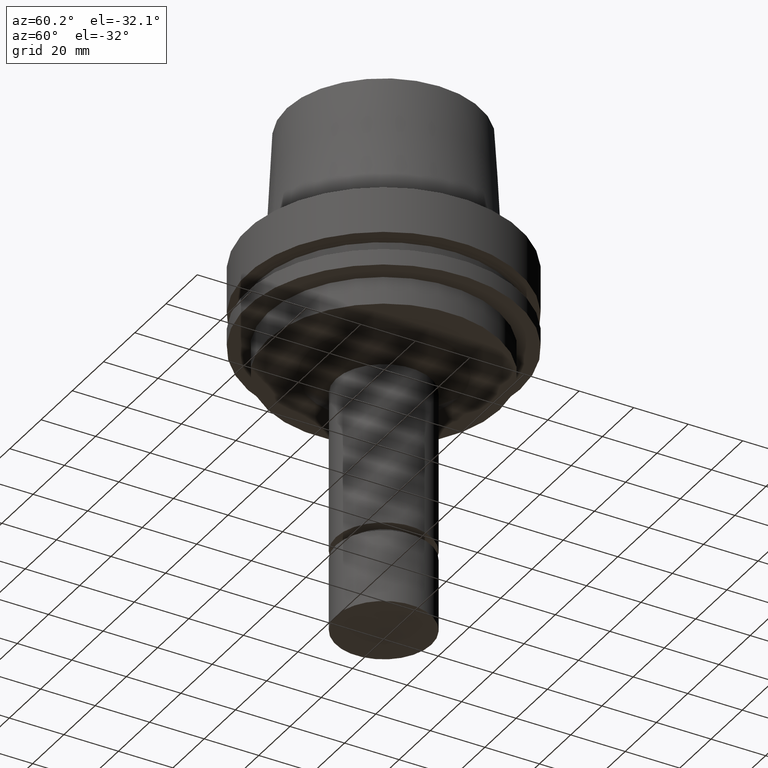
[diagram: clean part render]
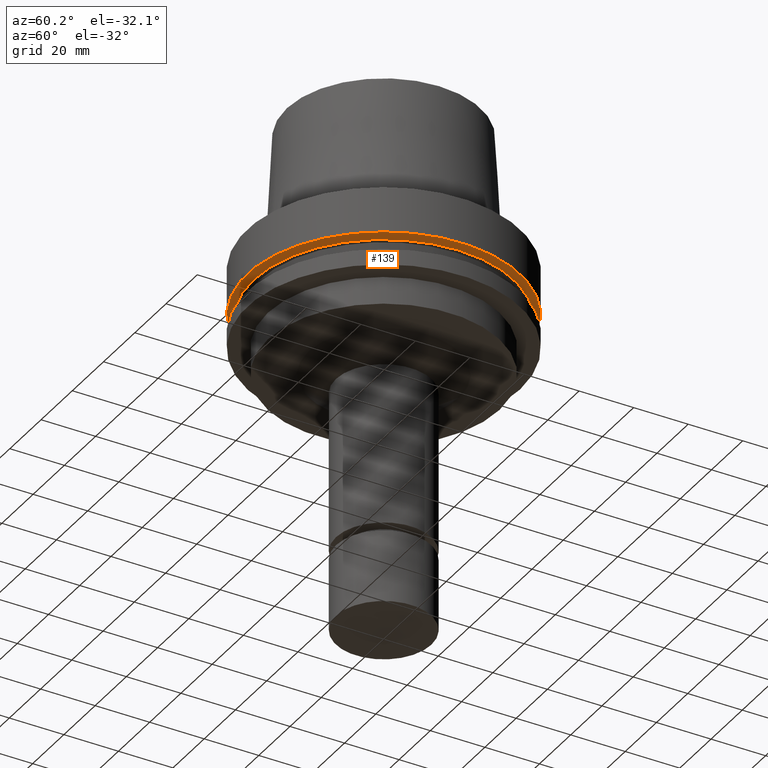
[diagram: same view with one face highlighted and labeled with its STEP entity id]
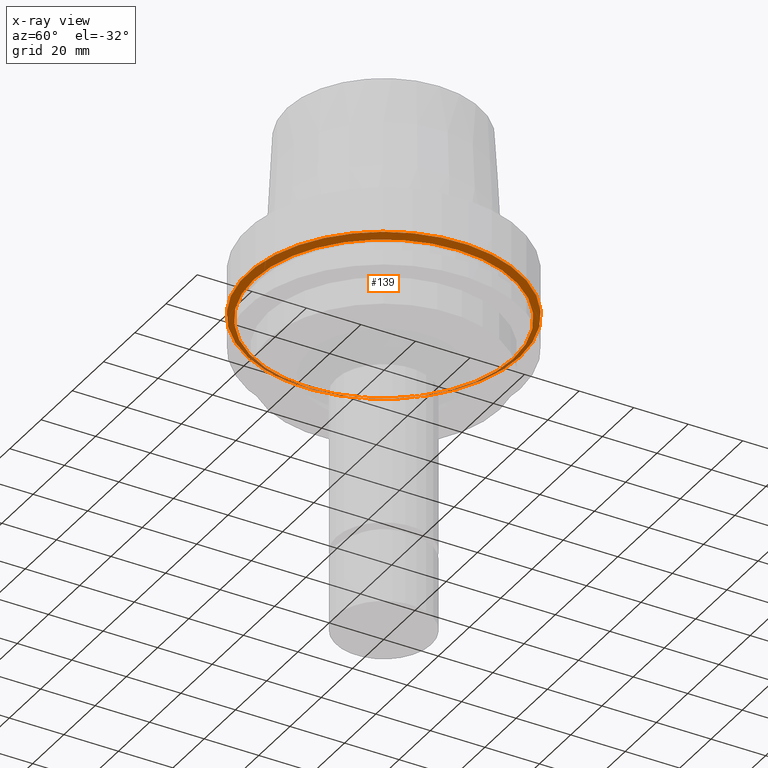
[diagram: x-ray of the same camera — body ghosted, the highlighted face saturated]
A machine part, auxiliary view. The second image highlights one B-rep face of the part: STEP entity #139.
The next image is the same camera in x-ray: the body ghosted, the highlighted face saturated — about 8% of this face is hidden behind the body in this view.
In plain terms, the highlighted conical surface has half-angle 60 deg.
Its self-contained STEP definition (entity closure, byte-faithful):
#106=EDGE_CURVE('Unnamed[1]',#260,#260,#261,.T.);
#139=ADVANCED_FACE('Unnamed[1]',(#312,#313),#314,.T.);
#199=EDGE_CURVE('Unnamed[1]',#404,#404,#405,.T.);
#260=VERTEX_POINT('',#470);
#261=CIRCLE('',#471,50.0);
#312=FACE_BOUND('',#535,.T.);
#313=FACE_BOUND('',#536,.T.);
#314=CONICAL_SURFACE('',#537,48.81129763,1.04719755328238);
#404=VERTEX_POINT('',#648);
#405=CIRCLE('',#649,47.62259526);
#470=CARTESIAN_POINT('',(1.0257889421431E-015,50.0,-16.75240474));
#471=AXIS2_PLACEMENT_3D('',#698,#699,#700);
#535=EDGE_LOOP('',(#756));
#536=EDGE_LOOP('',(#757));
#537=AXIS2_PLACEMENT_3D('',#758,#759,#760);
#648=CARTESIAN_POINT('',(1.10983616172729E-015,47.62259526,-18.125));
#649=AXIS2_PLACEMENT_3D('',#857,#858,#859);
#698=CARTESIAN_POINT('',(1.0257889421431E-015,2.05157788428619E-015,-16.75240474));
#699=DIRECTION('',(6.12323399573677E-017,1.22464679914672E-016,-1.0));
#700=DIRECTION('',(-1.23259516440783E-032,1.0,1.22464679914672E-016));
#756=ORIENTED_EDGE('',*,*,#199,.F.);
#757=ORIENTED_EDGE('',*,*,#106,.T.);
#758=CARTESIAN_POINT('',(1.06781255193519E-015,2.13562510387038E-015,-17.43870237));
#759=DIRECTION('',(-6.12323399573677E-017,-1.22464679914711E-016,1.0));
#760=DIRECTION('',(-1.23259516440755E-032,1.0,1.22464679914711E-016));
#857=CARTESIAN_POINT('',(1.10983616172729E-015,2.21967232345458E-015,-18.125));
#858=DIRECTION('',(6.12323399573676E-017,1.22464679914752E-016,-1.0));
#859=DIRECTION('',(-1.23259516440801E-032,1.0,1.22464679914752E-016));